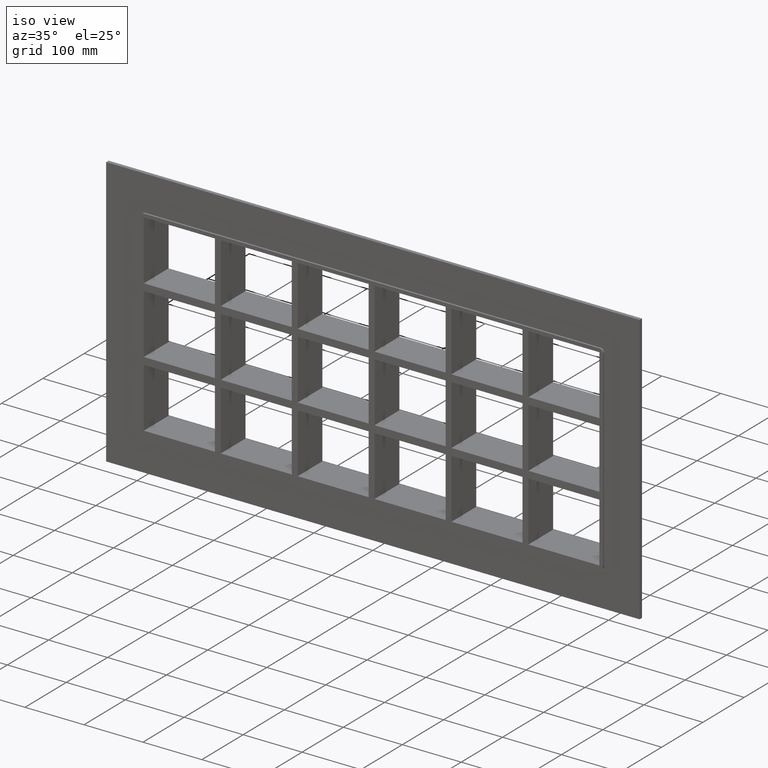
[diagram: clean part render]
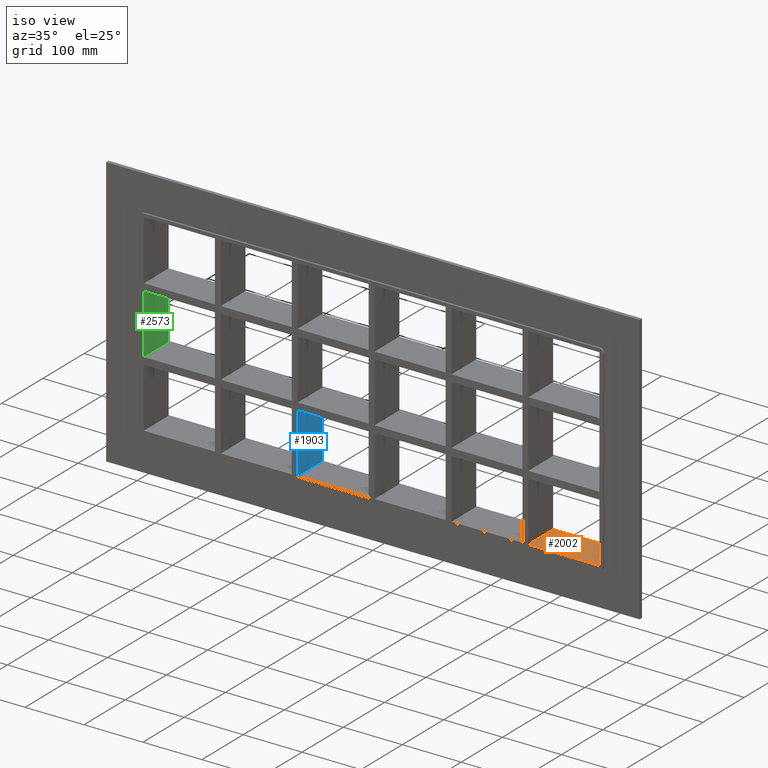
[diagram: same view with three faces highlighted in distinct colors, each labeled with its STEP entity id]
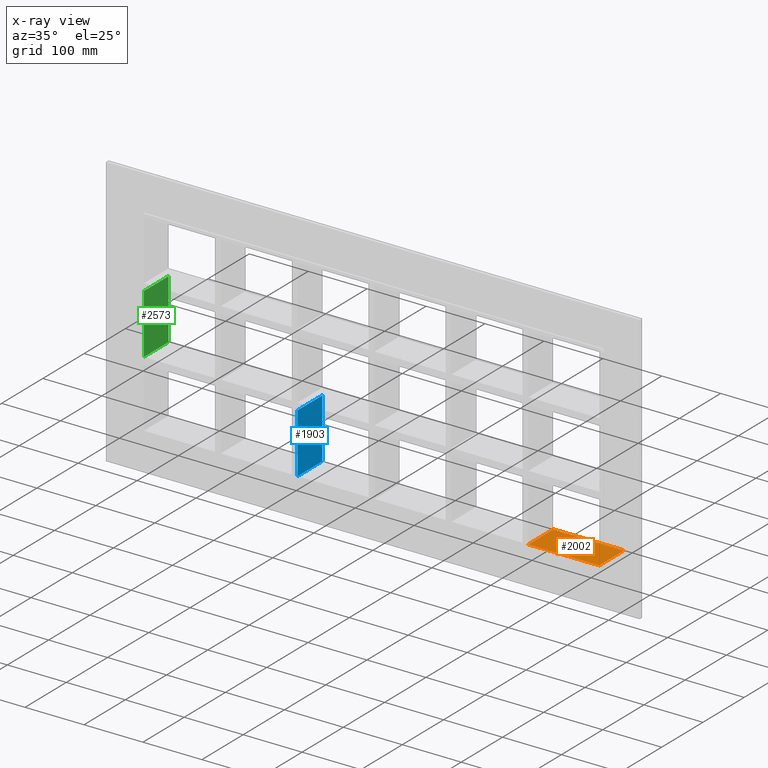
[diagram: x-ray of the same camera — body ghosted, the three highlighted faces saturated]
A machine part, iso view with three faces highlighted in distinct colors.
The next image is the same camera in x-ray (body ghosted, the three faces saturated) — at least one of them is partly hidden behind the body in this view.
Their STEP definitions:

[orange] entity #2002 — the highlighted planar face has unit normal (0, 0, -1).
#1429=CARTESIAN_POINT('',(265.99999999999642,57.0,-163.49999999998425));
#1430=VERTEX_POINT('',#1429);
#1431=CARTESIAN_POINT('',(386.50000000000006,57.0,-163.5));
#1432=VERTEX_POINT('',#1431);
#1433=CARTESIAN_POINT('',(265.99999999999642,57.0,-163.5));
#1434=DIRECTION('',(1.0,0.0,0.0));
#1435=VECTOR('',#1434,120.50000000000364);
#1436=LINE('',#1433,#1435);
#1437=EDGE_CURVE('',#1430,#1432,#1436,.T.);
#1556=CARTESIAN_POINT('',(265.99999999999642,-3.0,-163.49999999998428));
#1557=VERTEX_POINT('',#1556);
#1564=CARTESIAN_POINT('',(265.99999999999636,57.000000000000007,-163.5));
#1565=DIRECTION('',(0.0,-1.0,0.0));
#1566=VECTOR('',#1565,60.000000000000007);
#1567=LINE('',#1564,#1566);
#1568=EDGE_CURVE('',#1430,#1557,#1567,.T.);
#1979=CARTESIAN_POINT('',(386.50000000000006,0.0,-163.5));
#1980=DIRECTION('',(0.0,0.0,-1.0));
#1981=DIRECTION('',(-1.0,0.0,0.0));
#1982=AXIS2_PLACEMENT_3D('',#1979,#1980,#1981);
#1983=PLANE('',#1982);
#1984=ORIENTED_EDGE('',*,*,#1568,.T.);
#1985=CARTESIAN_POINT('',(386.50000000000006,-3.0,-163.5));
#1986=VERTEX_POINT('',#1985);
#1987=CARTESIAN_POINT('',(386.50000000000006,-3.0,-163.5));
#1988=DIRECTION('',(-1.0,0.0,0.0));
#1989=VECTOR('',#1988,120.50000000000364);
#1990=LINE('',#1987,#1989);
#1991=EDGE_CURVE('',#1986,#1557,#1990,.T.);
#1992=ORIENTED_EDGE('',*,*,#1991,.F.);
#1993=CARTESIAN_POINT('',(386.50000000000006,56.999999999999993,-163.5));
#1994=DIRECTION('',(0.0,-1.0,0.0));
#1995=VECTOR('',#1994,59.999999999999993);
#1996=LINE('',#1993,#1995);
#1997=EDGE_CURVE('',#1432,#1986,#1996,.T.);
#1998=ORIENTED_EDGE('',*,*,#1997,.F.);
#1999=ORIENTED_EDGE('',*,*,#1437,.F.);
#2000=EDGE_LOOP('',(#1984,#1992,#1998,#1999));
#2001=FACE_OUTER_BOUND('',#2000,.T.);
#2002=ADVANCED_FACE('',(#2001),#1983,.F.);

[blue] entity #1903 — the highlighted planar face has unit normal (1, 0, 0).
#1326=CARTESIAN_POINT('',(-125.50000000000364,57.0,-62.500000000009344));
#1327=VERTEX_POINT('',#1326);
#1334=CARTESIAN_POINT('',(-125.50000000000364,57.0,-163.49999999998425));
#1335=VERTEX_POINT('',#1334);
#1336=CARTESIAN_POINT('',(-125.50000000000364,57.0,-62.500000000009351));
#1337=DIRECTION('',(0.0,0.0,-1.0));
#1338=VECTOR('',#1337,100.9999999999749);
#1339=LINE('',#1336,#1338);
#1340=EDGE_CURVE('',#1327,#1335,#1339,.T.);
#1873=CARTESIAN_POINT('',(-125.50000000000364,-3.0,163.5));
#1874=DIRECTION('',(1.0,0.0,0.0));
#1875=DIRECTION('',(0.0,0.0,-1.0));
#1876=AXIS2_PLACEMENT_3D('',#1873,#1874,#1875);
#1877=PLANE('',#1876);
#1878=CARTESIAN_POINT('',(-125.50000000000364,-3.0,-62.500000000009344));
#1879=VERTEX_POINT('',#1878);
#1880=CARTESIAN_POINT('',(-125.50000000000365,-3.0,-62.500000000009322));
#1881=DIRECTION('',(0.0,1.0,0.0));
#1882=VECTOR('',#1881,60.0);
#1883=LINE('',#1880,#1882);
#1884=EDGE_CURVE('',#1879,#1327,#1883,.T.);
#1885=ORIENTED_EDGE('',*,*,#1884,.F.);
#1886=CARTESIAN_POINT('',(-125.50000000000364,-3.0,-163.49999999998428));
#1887=VERTEX_POINT('',#1886);
#1888=CARTESIAN_POINT('',(-125.50000000000364,-3.0,-62.500000000009351));
#1889=DIRECTION('',(0.0,0.0,-1.0));
#1890=VECTOR('',#1889,100.9999999999749);
#1891=LINE('',#1888,#1890);
#1892=EDGE_CURVE('',#1879,#1887,#1891,.T.);
#1893=ORIENTED_EDGE('',*,*,#1892,.T.);
#1894=CARTESIAN_POINT('',(-125.50000000000365,57.000000000000007,-163.5));
#1895=DIRECTION('',(0.0,-1.0,0.0));
#1896=VECTOR('',#1895,60.000000000000007);
#1897=LINE('',#1894,#1896);
#1898=EDGE_CURVE('',#1335,#1887,#1897,.T.);
#1899=ORIENTED_EDGE('',*,*,#1898,.F.);
#1900=ORIENTED_EDGE('',*,*,#1340,.F.);
#1901=EDGE_LOOP('',(#1885,#1893,#1899,#1900));
#1902=FACE_OUTER_BOUND('',#1901,.T.);
#1903=ADVANCED_FACE('',(#1902),#1877,.T.);

[green] entity #2573 — the highlighted planar face has unit normal (-1, 0, 0).
#83=CARTESIAN_POINT('',(-386.49999999999977,-3.0,50.499999999990628));
#84=VERTEX_POINT('',#83);
#91=CARTESIAN_POINT('',(-386.49999999999977,57.0,50.499999999990628));
#92=VERTEX_POINT('',#91);
#93=CARTESIAN_POINT('',(-386.50000000000011,57.000000000000007,50.499999999990628));
#94=DIRECTION('',(0.0,-1.0,0.0));
#95=VECTOR('',#94,60.000000000000007);
#96=LINE('',#93,#95);
#97=EDGE_CURVE('',#92,#84,#96,.T.);
#1057=CARTESIAN_POINT('',(-386.49999999999977,57.0,-50.500000000000114));
#1058=VERTEX_POINT('',#1057);
#1059=CARTESIAN_POINT('',(-386.50000000000011,57.0,50.499999999990621));
#1060=DIRECTION('',(0.0,0.0,-1.0));
#1061=VECTOR('',#1060,100.99999999999073);
#1062=LINE('',#1059,#1061);
#1063=EDGE_CURVE('',#92,#1058,#1062,.T.);
#2197=CARTESIAN_POINT('',(-386.49999999999977,-3.0,-50.500000000000114));
#2198=VERTEX_POINT('',#2197);
#2205=CARTESIAN_POINT('',(-386.50000000000011,-3.0,-50.500000000000107));
#2206=DIRECTION('',(0.0,0.0,1.0));
#2207=VECTOR('',#2206,100.99999999999073);
#2208=LINE('',#2205,#2207);
#2209=EDGE_CURVE('',#2198,#84,#2208,.T.);
#2552=CARTESIAN_POINT('',(-386.50000000000011,-3.0,-50.500000000000114));
#2553=DIRECTION('',(0.0,1.0,0.0));
#2554=VECTOR('',#2553,60.000000000000007);
#2555=LINE('',#2552,#2554);
#2556=EDGE_CURVE('',#2198,#1058,#2555,.T.);
#2562=CARTESIAN_POINT('',(-386.50000000000011,0.0,-163.5));
#2563=DIRECTION('',(-1.0,0.0,0.0));
#2564=DIRECTION('',(0.0,0.0,1.0));
#2565=AXIS2_PLACEMENT_3D('',#2562,#2563,#2564);
#2566=PLANE('',#2565);
#2567=ORIENTED_EDGE('',*,*,#97,.T.);
#2568=ORIENTED_EDGE('',*,*,#2209,.F.);
#2569=ORIENTED_EDGE('',*,*,#2556,.T.);
#2570=ORIENTED_EDGE('',*,*,#1063,.F.);
#2571=EDGE_LOOP('',(#2567,#2568,#2569,#2570));
#2572=FACE_OUTER_BOUND('',#2571,.T.);
#2573=ADVANCED_FACE('',(#2572),#2566,.F.);